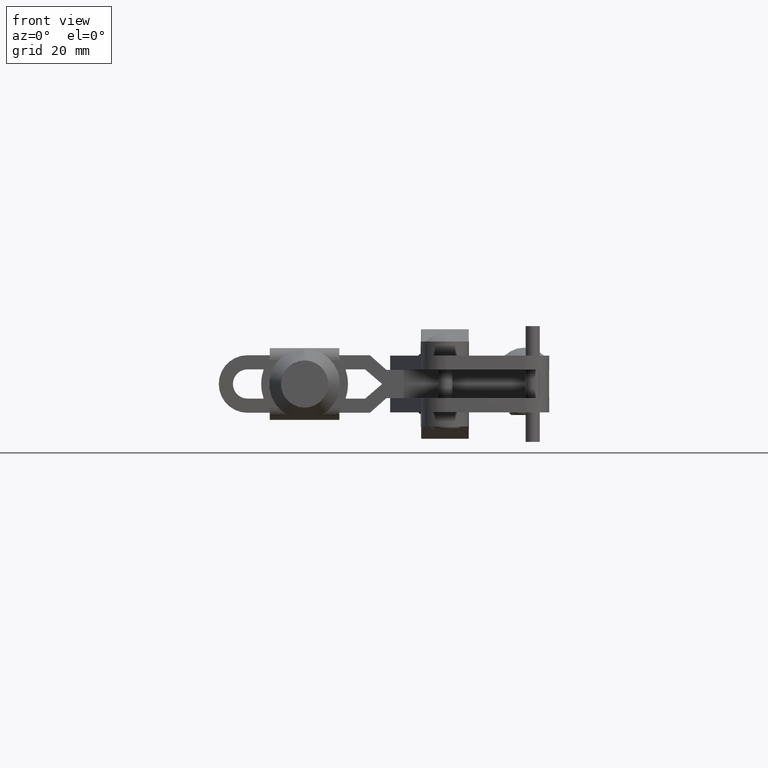
[diagram: clean part render]
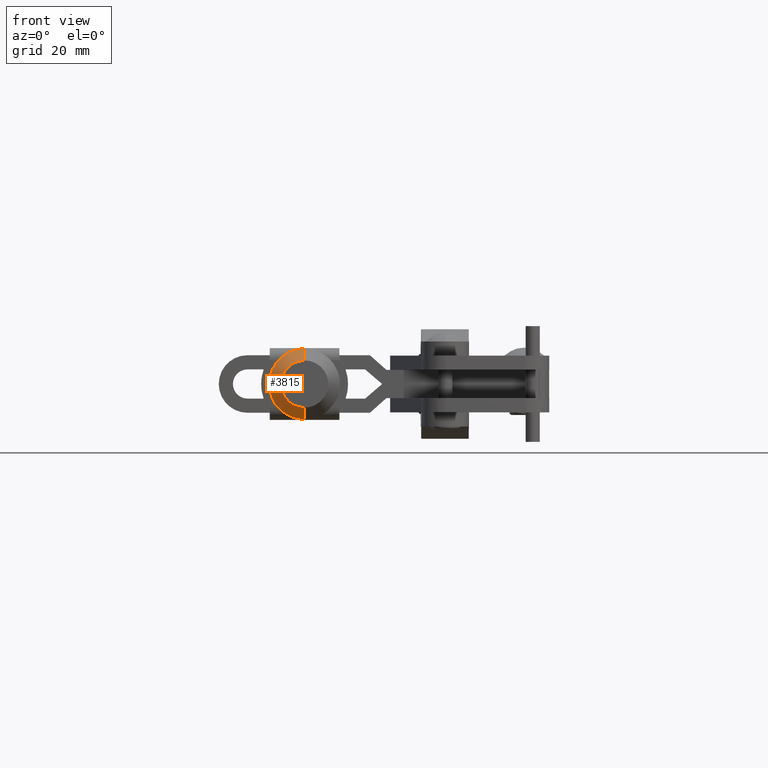
[diagram: same view with one face highlighted and labeled with its STEP entity id]
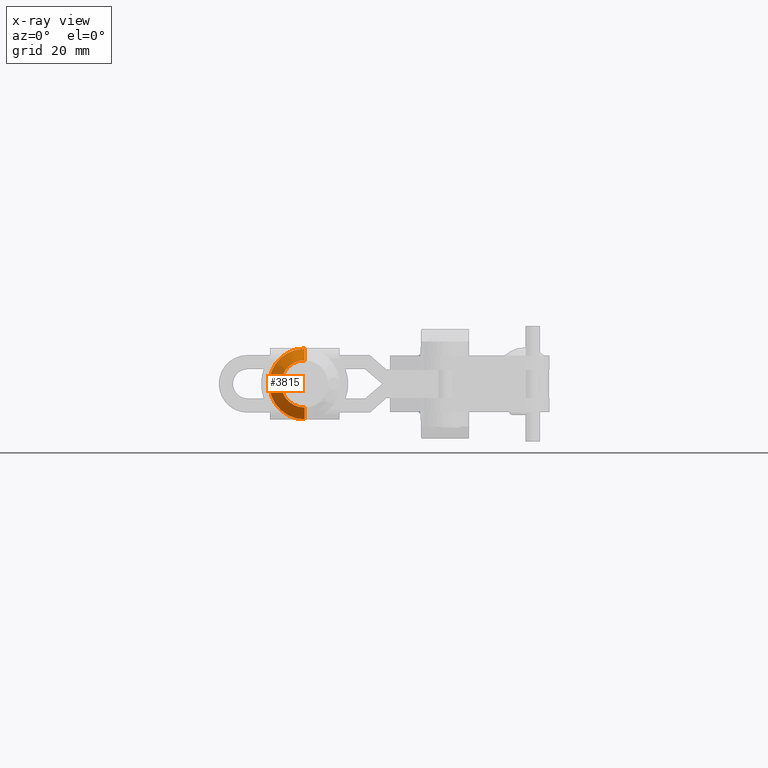
[diagram: x-ray of the same camera — body ghosted, the highlighted face saturated]
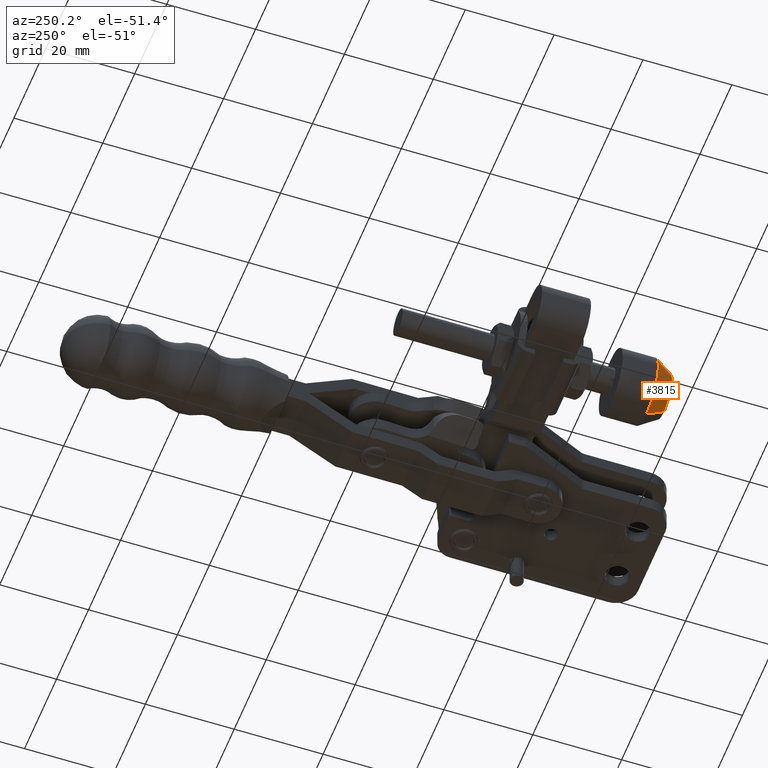
[diagram: same view with one face highlighted and labeled with its STEP entity id]
A machine part, front view. The second image highlights one B-rep face of the part: STEP entity #3815.
The next image is the same camera in x-ray: the body ghosted, the highlighted face saturated — about 0% of this face is hidden behind the body in this view.
A second angle (auxiliary view) of the same face is appended — the face is thin or edge-on in the first view.
In plain terms, the highlighted conical surface has half-angle 32.005 deg.
Its self-contained STEP definition (entity closure, byte-faithful):
#259 = EDGE_CURVE ( 'NONE', #1983, #6104, #6765, .T. ) ;
#1397 = CONICAL_SURFACE ( 'NONE', #4030, 4.999999999999893400, 0.5585993153435400100 ) ;
#1451 = EDGE_CURVE ( 'NONE', #9732, #1983, #5205, .T. ) ;
#1671 = FACE_OUTER_BOUND ( 'NONE', #9003, .T. ) ;
#1983 = VERTEX_POINT ( 'NONE', #5347 ) ;
#2054 = CARTESIAN_POINT ( 'NONE',  ( -4.634466110012502900, 0.9062620352335866200, -25.68006977252681700 ) ) ;
#2125 = AXIS2_PLACEMENT_3D ( 'NONE', #6516, #4372, #5558 ) ;
#2474 = CARTESIAN_POINT ( 'NONE',  ( -4.634466110012502000, 0.9062620352335866200, -30.68006977252671100 ) ) ;
#2640 = LINE ( 'NONE', #7059, #7302 ) ;
#2863 = VECTOR ( 'NONE', #5074, 1000.000000000000100 ) ;
#3084 = ORIENTED_EDGE ( 'NONE', *, *, #259, .F. ) ;
#3545 = DIRECTION ( 'NONE',  ( -0.0000000000000000000, 1.000000000000000000, -0.0000000000000000000 ) ) ;
#3815 = ADVANCED_FACE ( 'NONE', ( #1671 ), #1397, .T. ) ;
#3854 = CARTESIAN_POINT ( 'NONE',  ( -4.634466110012502000, 0.9062620352335866200, -30.68006977252671100 ) ) ;
#4030 = AXIS2_PLACEMENT_3D ( 'NONE', #2054, #3545, #8021 ) ;
#4372 = DIRECTION ( 'NONE',  ( -0.0000000000000000000, 1.000000000000000000, -0.0000000000000000000 ) ) ;
#4387 = CARTESIAN_POINT ( 'NONE',  ( -4.634466110012502900, 4.906262035233701200, -25.68006977252681700 ) ) ;
#4584 = DIRECTION ( 'NONE',  ( -0.0000000000000000000, 1.000000000000000000, -0.0000000000000000000 ) ) ;
#5074 = DIRECTION ( 'NONE',  ( 6.490615054263609900E-017, 0.8479983040050999000, -0.5299989400031608300 ) ) ;
#5205 = LINE ( 'NONE', #2474, #2863 ) ;
#5344 = EDGE_CURVE ( 'NONE', #9732, #9718, #7403, .T. ) ;
#5347 = CARTESIAN_POINT ( 'NONE',  ( -4.634466110012502000, 4.906262035233701200, -33.18006977252665700 ) ) ;
#5558 = DIRECTION ( 'NONE',  ( 0.0000000000000000000, 0.0000000000000000000, 1.000000000000000000 ) ) ;
#5890 = DIRECTION ( 'NONE',  ( 0.0000000000000000000, 0.0000000000000000000, 1.000000000000000000 ) ) ;
#6104 = VERTEX_POINT ( 'NONE', #6886 ) ;
#6516 = CARTESIAN_POINT ( 'NONE',  ( -4.634466110012502900, 0.9062620352335866200, -25.68006977252681700 ) ) ;
#6765 = CIRCLE ( 'NONE', #9522, 7.499999999999840100 ) ;
#6886 = CARTESIAN_POINT ( 'NONE',  ( -4.634466110012502900, 4.906262035233701200, -18.18006977252697700 ) ) ;
#7059 = CARTESIAN_POINT ( 'NONE',  ( -4.634466110012502900, 0.9062620352335866200, -20.68006977252692400 ) ) ;
#7302 = VECTOR ( 'NONE', #7737, 1000.000000000000100 ) ;
#7395 = EDGE_CURVE ( 'NONE', #9718, #6104, #2640, .T. ) ;
#7403 = CIRCLE ( 'NONE', #2125, 4.999999999999893400 ) ;
#7737 = DIRECTION ( 'NONE',  ( 0.0000000000000000000, 0.8479983040050999000, 0.5299989400031608300 ) ) ;
#8021 = DIRECTION ( 'NONE',  ( 0.0000000000000000000, 0.0000000000000000000, 1.000000000000000000 ) ) ;
#8841 = ORIENTED_EDGE ( 'NONE', *, *, #7395, .T. ) ;
#9003 = EDGE_LOOP ( 'NONE', ( #11068, #9456, #8841, #3084 ) ) ;
#9456 = ORIENTED_EDGE ( 'NONE', *, *, #5344, .T. ) ;
#9522 = AXIS2_PLACEMENT_3D ( 'NONE', #4387, #4584, #5890 ) ;
#9707 = CARTESIAN_POINT ( 'NONE',  ( -4.634466110012502900, 0.9062620352335866200, -20.68006977252692400 ) ) ;
#9718 = VERTEX_POINT ( 'NONE', #9707 ) ;
#9732 = VERTEX_POINT ( 'NONE', #3854 ) ;
#11068 = ORIENTED_EDGE ( 'NONE', *, *, #1451, .F. ) ;